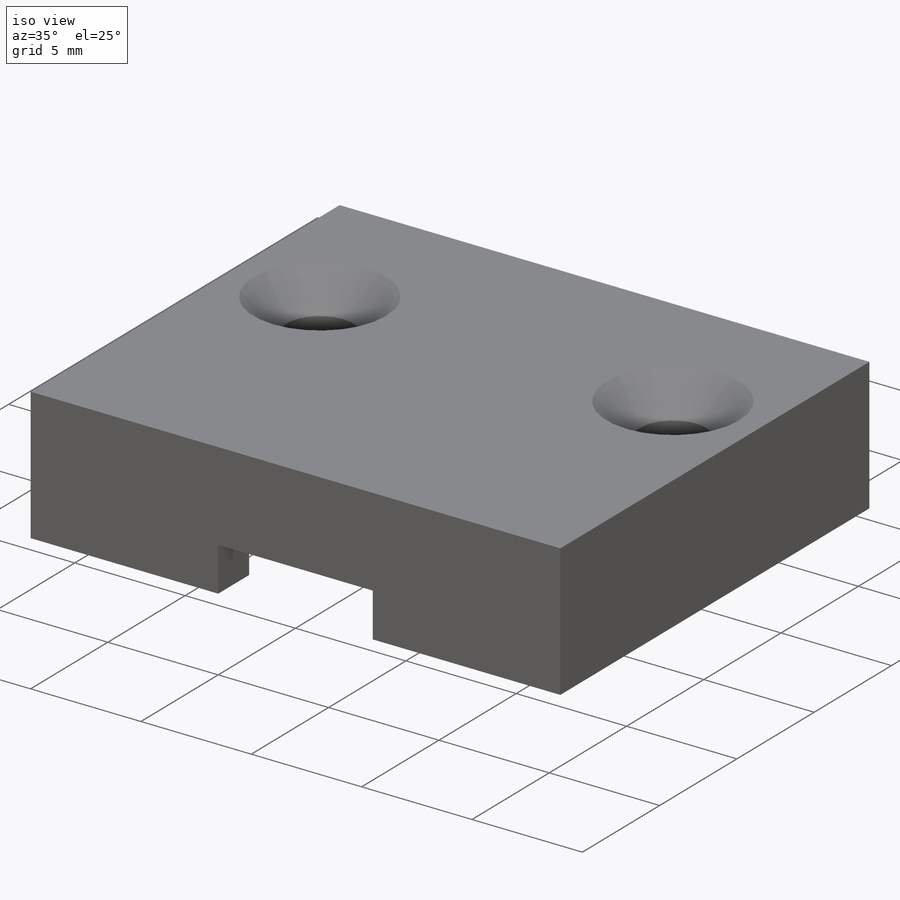
[diagram: iso view]
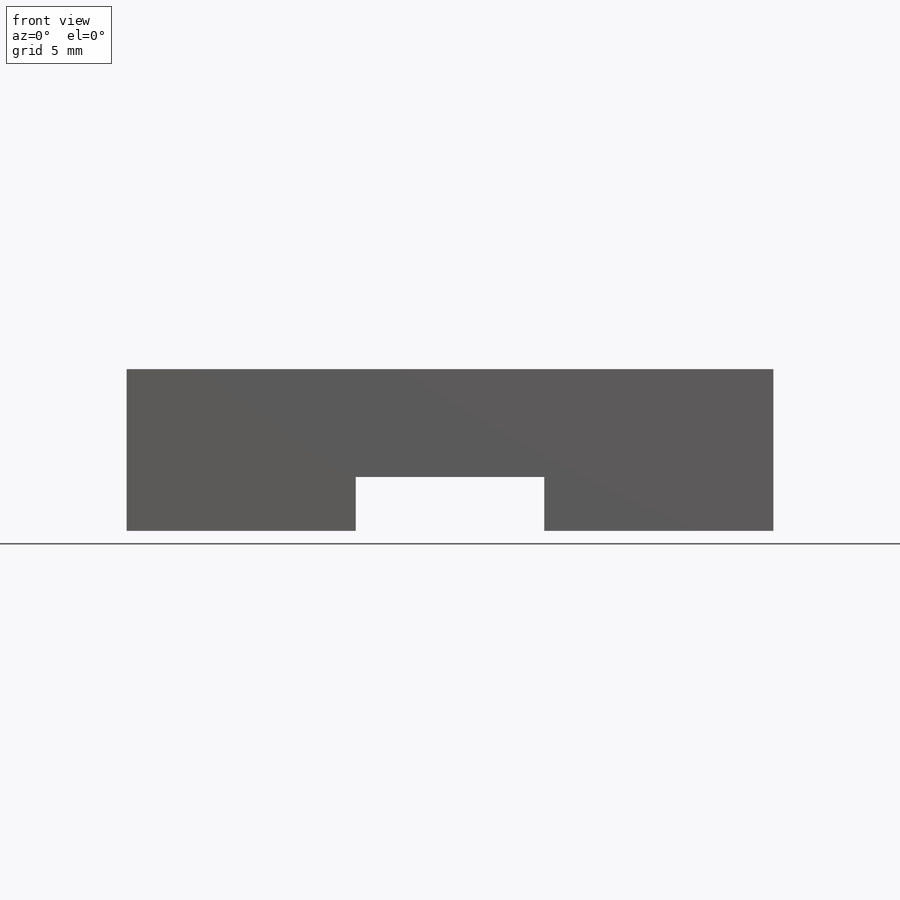
[diagram: front view]
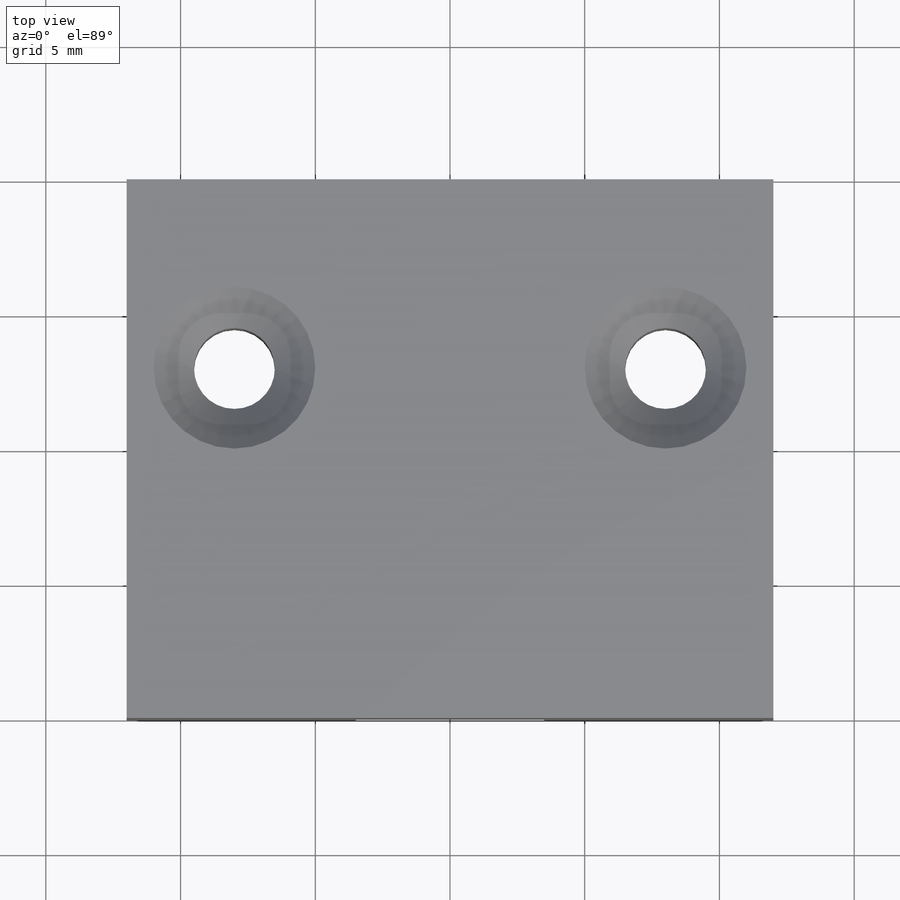
[diagram: top view]
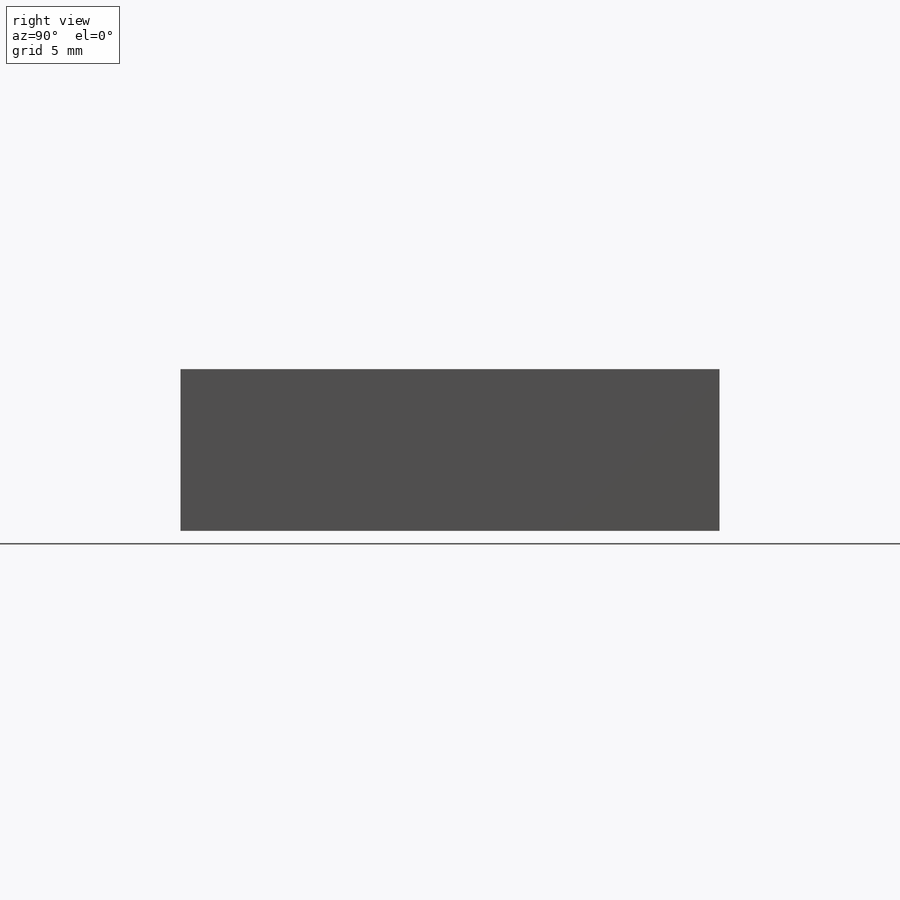
[diagram: right view]
SOLIDWORKS PART (.sldprt)
format: sldprt  version: not decoded by parser v0  size: 178,688 bytes
history: native  units: mm
features: plane x3, sketch x2, material x1, extrude x1, cut_extrude x1, chamfer x1 (+8 scaffold rows collapsed)
feature tree (17):
  scaffold x8  (default folders/planes/origin — collapsed)
  material  "Matériau <non spécifié>"
  plane  "Plan de face"
  plane  "Plan de dessus"
  plane  "Plan de droite"
  sketch  "Esquisse1"  dims[c1.D3=3.0mm c1.D4=3.0mm c1.D5=3.0mm c1.D1=20.0mm c1.D2=24.0mm c2.D4=7.0mm c2.D5=16.0mm]
  extrude  "Boss.-Extru.1"  Depth=6mm
  sketch  "Esquisse2"  dims[D1=14.0mm D2=4.0mm D3=2.0mm D4=12.0mm D5=7.0mm]
  cut_extrude  "Enlèv. mat.-Extru.1"  Depth=2mm
  chamfer  "Chanfrein1"  Distance=1.5mm Angle=45deg
decode coverage: 5 of 5 modeling features carry decoded parameters
note: suppression state not decoded; provenance and decode notes live in map.json
